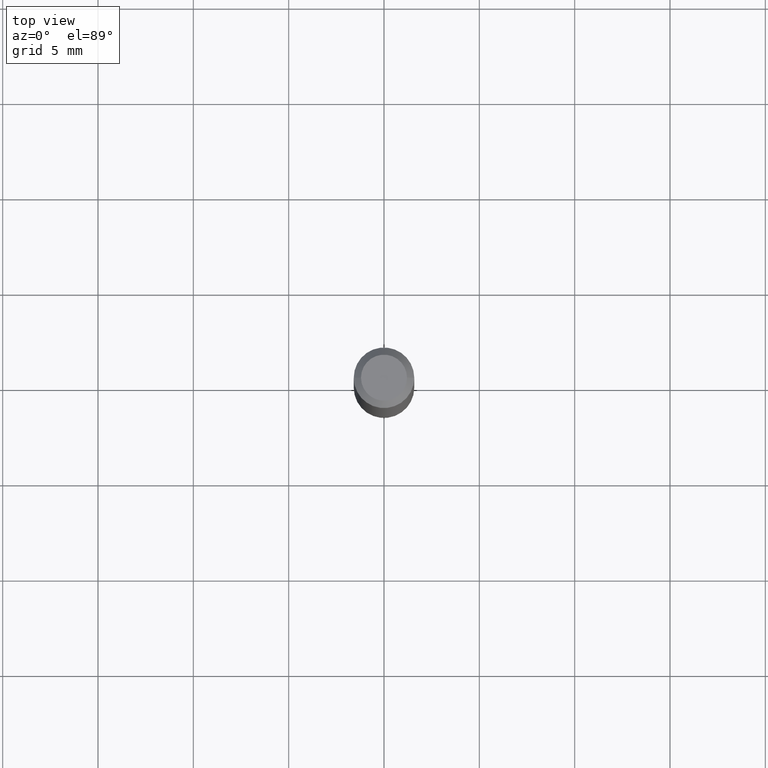
[diagram: clean part render]
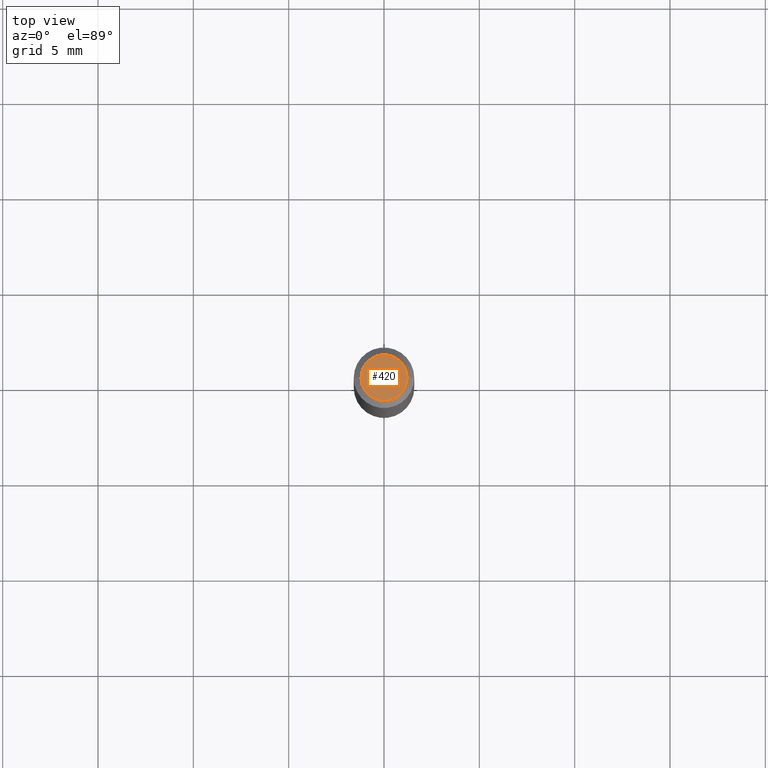
[diagram: same view with one face highlighted and labeled with its STEP entity id]
A machine part, top view. The second image highlights one B-rep face of the part: STEP entity #420.
In plain terms, the highlighted planar face has unit normal (0, -0, -1).
Its self-contained STEP definition (entity closure, byte-faithful):
#8 = VERTEX_POINT ( 'NONE', #114 ) ;
#33 = DIRECTION ( 'NONE',  ( -1.000000000000000000, 6.982962677686265922E-15, -4.876176775795935793E-29 ) ) ;
#35 = AXIS2_PLACEMENT_3D ( 'NONE', #426, #80, #196 ) ;
#42 = EDGE_CURVE ( 'NONE', #8, #105, #427, .T. ) ;
#80 = DIRECTION ( 'NONE',  ( -2.445468806185136597E-29, 3.491481338843145583E-15, 1.000000000000000000 ) ) ;
#87 = DIRECTION ( 'NONE',  ( 1.000000000000000000, -6.982962677686267499E-15, 4.852736867747366768E-29 ) ) ;
#105 = VERTEX_POINT ( 'NONE', #238 ) ;
#114 = CARTESIAN_POINT ( 'NONE',  ( -0.04749999999999999362, 3.578768372314206562E-16, -2.410986470890853225E-16 ) ) ;
#136 = PLANE ( 'NONE',  #354 ) ;
#187 = AXIS2_PLACEMENT_3D ( 'NONE', #395, #415, #87 ) ;
#196 = DIRECTION ( 'NONE',  ( 1.000000000000000000, -6.982962677686267499E-15, 4.852736867747366768E-29 ) ) ;
#203 = FACE_OUTER_BOUND ( 'NONE', #281, .T. ) ;
#238 = CARTESIAN_POINT ( 'NONE',  ( 0.04749999999999999362, -4.035134999187582567E-16, -2.410986470890803429E-16 ) ) ;
#243 = CARTESIAN_POINT ( 'NONE',  ( 3.316907271900976096E-16, 0.04749999999999999362, -2.863946871395908498E-16 ) ) ;
#259 = CIRCLE ( 'NONE', #187, 0.04749999999999999362 ) ;
#281 = EDGE_LOOP ( 'NONE', ( #286, #347 ) ) ;
#286 = ORIENTED_EDGE ( 'NONE', *, *, #42, .T. ) ;
#344 = EDGE_CURVE ( 'NONE', #105, #8, #259, .T. ) ;
#347 = ORIENTED_EDGE ( 'NONE', *, *, #344, .T. ) ;
#354 = AXIS2_PLACEMENT_3D ( 'NONE', #243, #373, #33 ) ;
#373 = DIRECTION ( 'NONE',  ( 2.438088387897960049E-29, -3.491481338843145188E-15, -1.000000000000000000 ) ) ;
#395 = CARTESIAN_POINT ( 'NONE',  ( 5.895992206697911344E-45, -8.417914271318623889E-31, -2.410986470890829067E-16 ) ) ;
#415 = DIRECTION ( 'NONE',  ( -2.445468806185136597E-29, 3.491481338843145583E-15, 1.000000000000000000 ) ) ;
#420 = ADVANCED_FACE ( 'NONE', ( #203 ), #136, .F. ) ;
#426 = CARTESIAN_POINT ( 'NONE',  ( 5.895992206697911344E-45, -8.417914271318623889E-31, -2.410986470890829067E-16 ) ) ;
#427 = CIRCLE ( 'NONE', #35, 0.04749999999999999362 ) ;